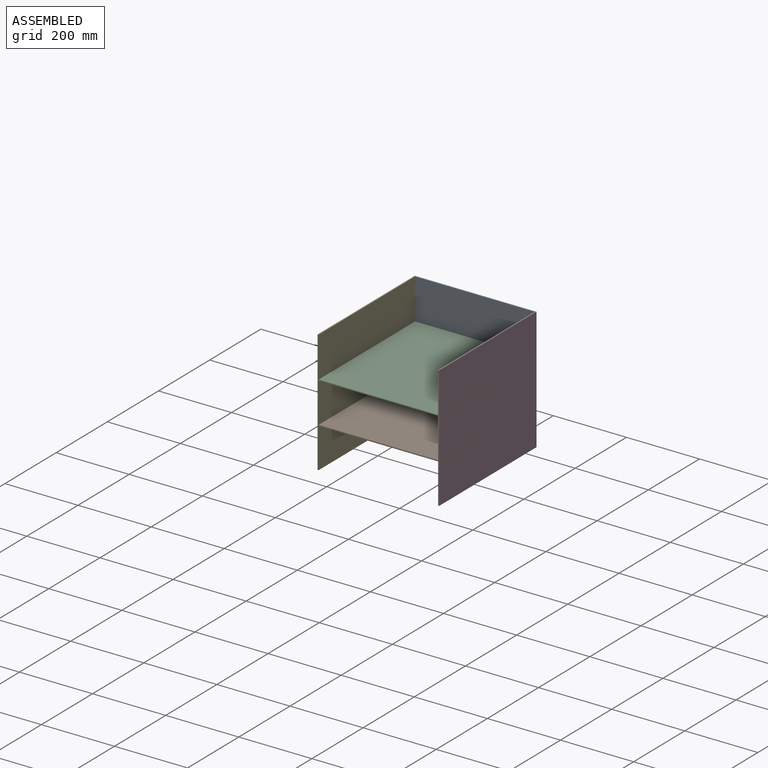
[diagram: assembled view]
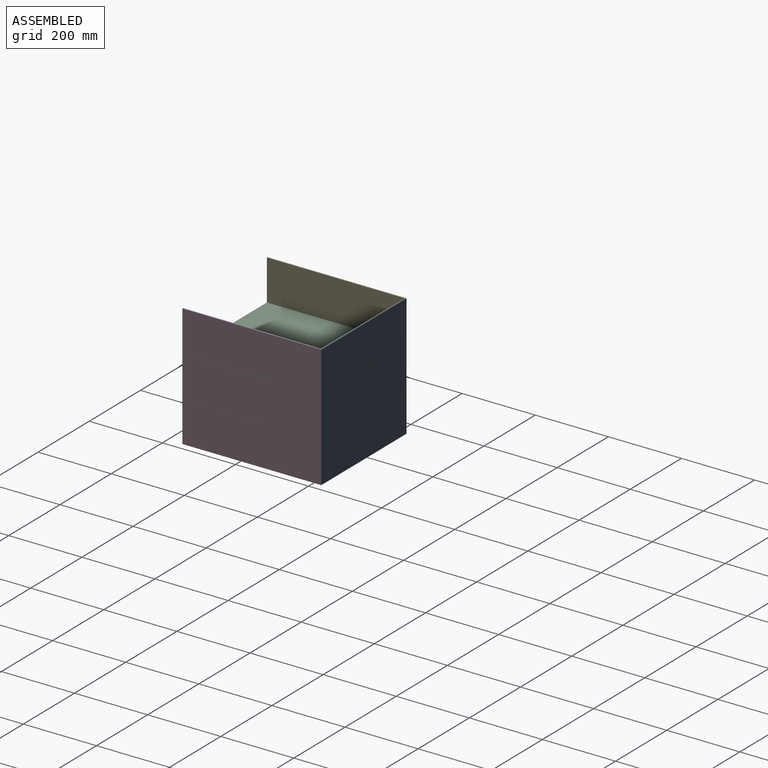
[diagram: assembled view, second angle]
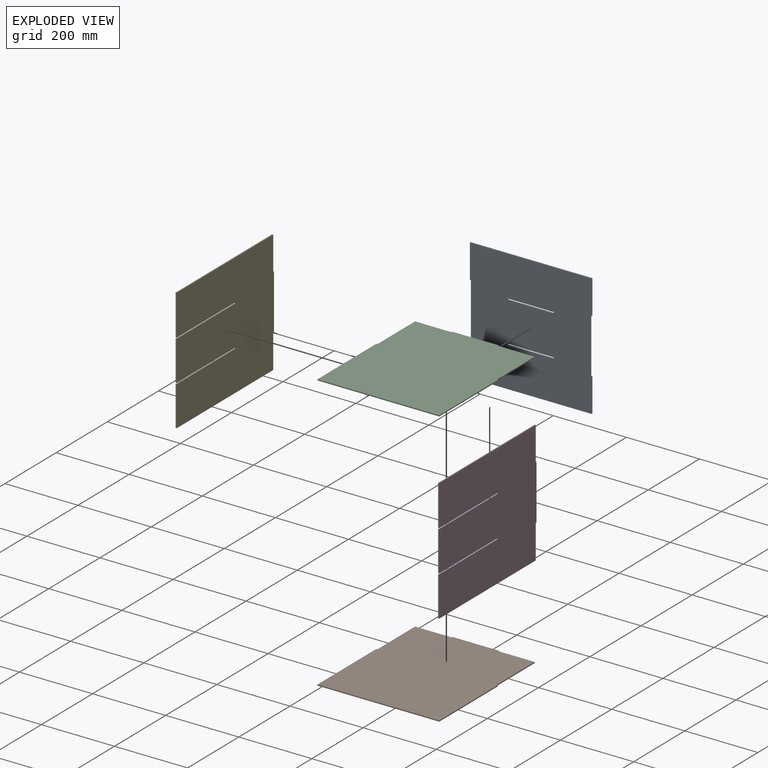
[diagram: exploded view]
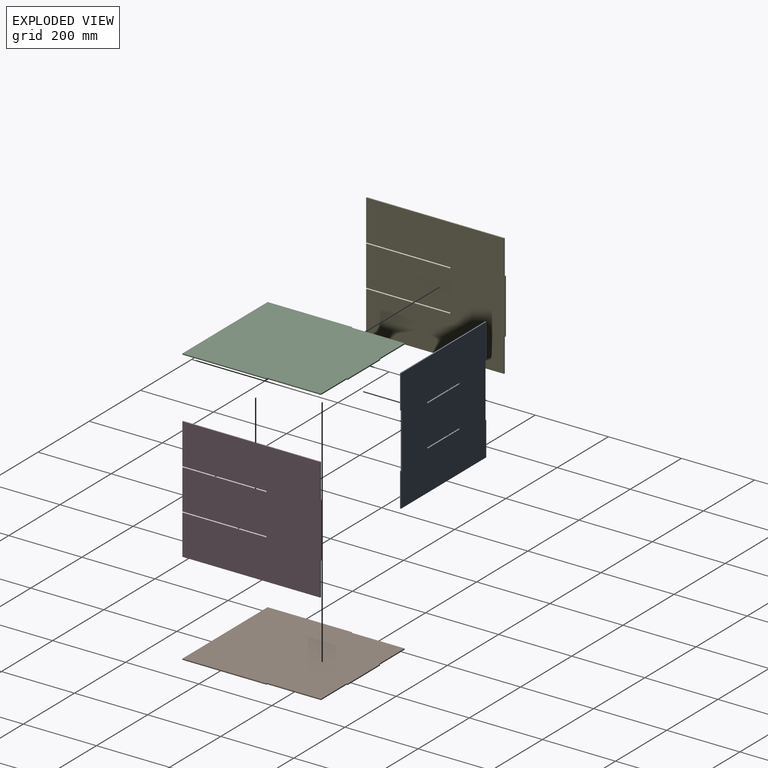
[diagram: exploded view, second angle]
ASSEMBLY  parts=5 mates=4
PART A: 22 faces, bbox 333x3x335 mm
  f0: plane 3x3mm, normal (0,0,-1), area 9mm2, adj f1,f19,f20,f21
  f1: plane 150x3mm, normal (-1,0,0), area 450mm2, adj f0,f2,f20,f21
  f2: plane 3x3mm, normal (0,0,1), area 9mm2, adj f1,f3,f20,f21
  f3: plane 92.5x3mm, normal (-1,0,0), area 277.5mm2, adj f2,f4,f20,f21
  f4: plane 333x3mm, normal (0,0,-1), area 999mm2, adj f3,f5,f20,f21
  f5: plane 92.5x3mm, normal (1,0,0), area 277.5mm2, adj f4,f6,f20,f21
  f6: plane 3x3mm, normal (0,0,1), area 9mm2, adj f5,f7,f20,f21
  f7: plane 150x3mm, normal (1,0,0), area 450mm2, adj f6,f8,f20,f21
  f8: plane 3x3mm, normal (0,0,-1), area 9mm2, adj f7,f9,f20,f21
  f9: plane 92.5x3mm, normal (1,0,0), area 277.5mm2, adj f8,f10,f20,f21
  f10: plane 333x3mm, normal (0,0,1), area 999mm2, adj f9,f19,f20,f21
  f11: plane 3x3mm, normal (-1,0,0), area 9mm2, adj f12,f17,f20,f21
  f12: plane 127x3mm, normal (0,0,1), area 381mm2, adj f11,f13,f20,f21
  f13: plane 3x3mm, normal (1,0,0), area 9mm2, adj f12,f17,f20,f21
  f14: plane 3x3mm, normal (-1,0,0), area 9mm2, adj f15,f18,f20,f21
  f15: plane 127x3mm, normal (0,0,1), area 381mm2, adj f14,f16,f20,f21
  f16: plane 3x3mm, normal (1,0,0), area 9mm2, adj f15,f18,f20,f21
  f17: plane 127x3mm, normal (0,0,-1), area 381mm2, adj f11,f13,f20,f21
  f18: plane 127x3mm, normal (0,0,-1), area 381mm2, adj f14,f16,f20,f21
  f19: plane 92.5x3mm, normal (-1,0,0), area 277.5mm2, adj f0,f10,f20,f21
  f20: plane 335x333mm, normal (0,-1,0), area 109893mm2, adj f0,f1,f2,f3,f4,f5,f6,f7
  f21: plane 335x333mm, normal (0,1,0), area 109893mm2, adj f0,f1,f2,f3,f4,f5,f6,f7
PART B: 14 faces, bbox 333x380x3 mm
  f0: plane 127x3mm, normal (0,1,0), area 381mm2, adj f2,f3,f8,f13
  f1: plane 147x3mm, normal (-1,0,0), area 441mm2, adj f2,f3,f4,f7
  f2: plane 380x333mm, normal (0,0,1), area 125040mm2, adj f0,f1,f4,f5,f6,f7,f8,f9
  f3: plane 380x333mm, normal (0,0,-1), area 125040mm2, adj f0,f1,f4,f5,f6,f7,f8,f9
  f4: plane 3x3mm, normal (0,1,0), area 9mm2, adj f1,f2,f3,f5
  f5: plane 230x3mm, normal (-1,0,0), area 690mm2, adj f2,f3,f4,f6
  f6: plane 333x3mm, normal (0,-1,0), area 999mm2, adj f2,f3,f5,f11
  f7: plane 100x3mm, normal (0,1,0), area 300mm2, adj f1,f2,f3,f8
  f8: plane 3x3mm, normal (-1,0,0), area 9mm2, adj f0,f2,f3,f7
  f9: plane 147x3mm, normal (1,0,0), area 441mm2, adj f2,f3,f10,f12
  f10: plane 3x3mm, normal (0,1,0), area 9mm2, adj f2,f3,f9,f11
  f11: plane 230x3mm, normal (1,0,0), area 690mm2, adj f2,f3,f6,f10
  f12: plane 100x3mm, normal (0,1,0), area 300mm2, adj f2,f3,f9,f13
  f13: plane 3x3mm, normal (1,0,0), area 9mm2, adj f0,f2,f3,f12
PART C: same geometry as B
PART D: 18 faces, bbox 3x380x335 mm
  f0: plane 377x3mm, normal (0,0,-1), area 1131mm2, adj f3,f4,f12,f17
  f1: plane 150x3mm, normal (0,1,0), area 450mm2, adj f3,f4,f15,f16
  f2: plane 377x3mm, normal (0,0,1), area 1131mm2, adj f3,f4,f13,f14
  f3: plane 380x335mm, normal (1,0,0), area 125365mm2, adj f0,f1,f2,f5,f6,f7,f8,f9
  f4: plane 380x335mm, normal (-1,0,0), area 125365mm2, adj f0,f1,f2,f5,f6,f7,f8,f9
  f5: plane 230x3mm, normal (0,0,-1), area 690mm2, adj f3,f4,f6,f13
  f6: plane 3x3mm, normal (0,-1,0), area 9mm2, adj f3,f4,f5,f7
  f7: plane 230x3mm, normal (0,0,1), area 690mm2, adj f3,f4,f6,f8
  f8: plane 109x3mm, normal (0,-1,0), area 327mm2, adj f3,f4,f7,f9
  f9: plane 230x3mm, normal (0,0,-1), area 690mm2, adj f3,f4,f8,f10
  f10: plane 3x3mm, normal (0,-1,0), area 9mm2, adj f3,f4,f9,f11
  f11: plane 230x3mm, normal (0,0,1), area 690mm2, adj f3,f4,f10,f12
  f12: plane 109x3mm, normal (0,-1,0), area 327mm2, adj f0,f3,f4,f11
  f13: plane 111x3mm, normal (0,-1,0), area 333mm2, adj f2,f3,f4,f5
  f14: plane 92.5x3mm, normal (0,1,0), area 277.5mm2, adj f2,f3,f4,f15
  f15: plane 3x3mm, normal (0,0,1), area 9mm2, adj f1,f3,f4,f14
  f16: plane 3x3mm, normal (0,0,-1), area 9mm2, adj f1,f3,f4,f17
  f17: plane 92.5x3mm, normal (0,1,0), area 277.5mm2, adj f0,f3,f4,f16
PART E: same geometry as D
PLACE A t=(-233.8,88.07,144.98)mm
PLACE B t=(-233.8,-101.93,86.48)mm
PLACE C t=(-233.8,-101.93,198.48)mm
PLACE D t=(-70.3,88.07,-22.52)mm
PLACE E t=(-400.3,88.07,-22.52)mm
MATE revolute A.f2 <-> E.f16  axis (0,0,1) through (-400.3,85.07,69.98)mm
MATE revolute D.f11 <-> B.f3  axis (0,0,1) through (-67.3,-61.93,86.48)mm
MATE revolute C.f2 <-> E.f5  axis (0,0,1) through (-400.3,-61.93,201.48)mm
MATE revolute B.f2 <-> E.f9  axis (0,0,1) through (-400.3,-61.93,89.48)mm
